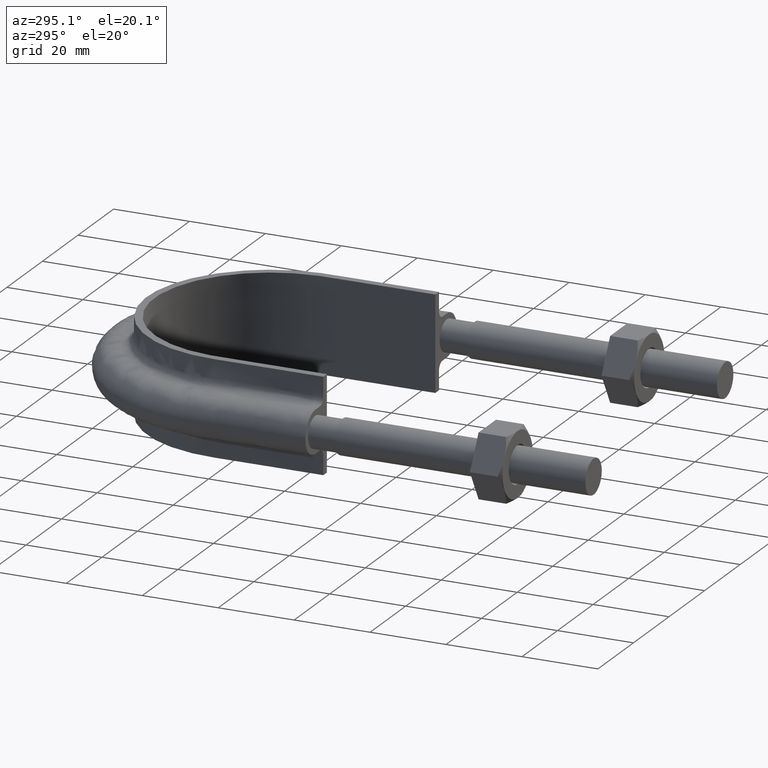
[diagram: clean part render]
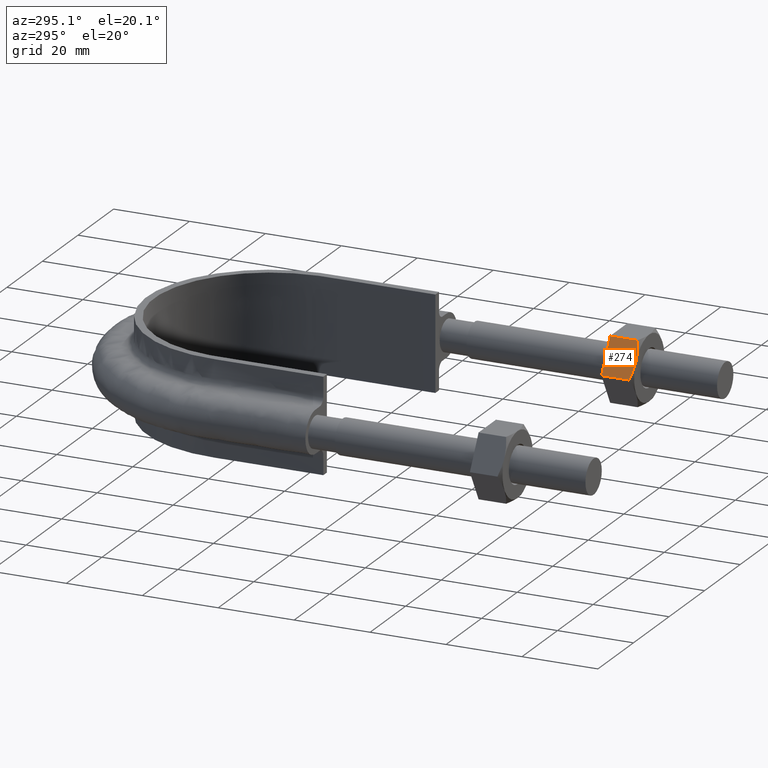
[diagram: same view with one face highlighted and labeled with its STEP entity id]
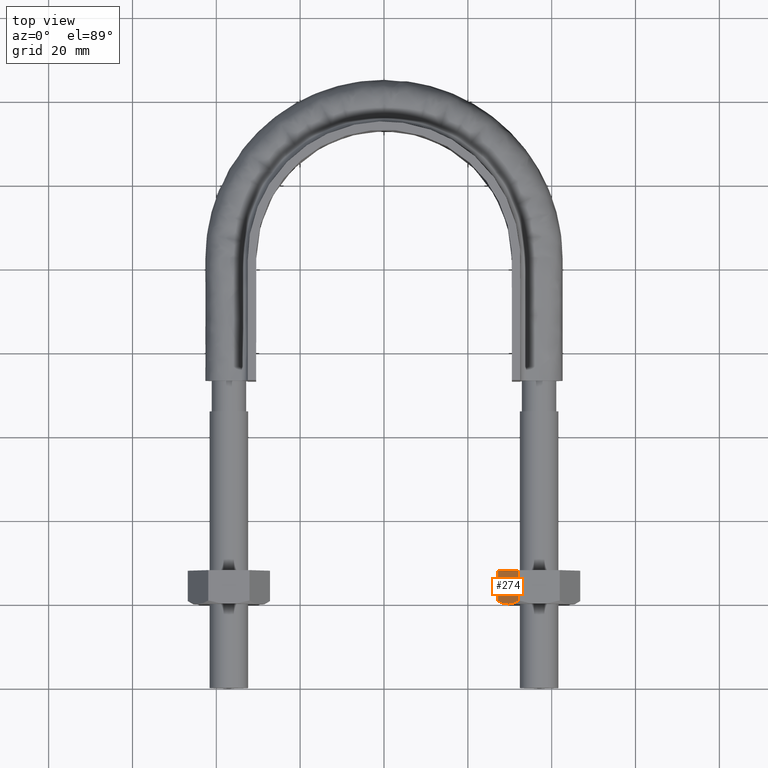
[diagram: same view with one face highlighted and labeled with its STEP entity id]
A machine part, auxiliary view. The second image highlights one B-rep face of the part: STEP entity #274.
A second angle (top view) of the same face is appended — the face is thin or edge-on in the first view.
In plain terms, the highlighted planar face has unit normal (0.866, -0, -0.5).
Its self-contained STEP definition (entity closure, byte-faithful):
#274 = ADVANCED_FACE( '', ( #421 ), #422, .F. );
#421 = FACE_OUTER_BOUND( '', #1418, .T. );
#422 = PLANE( '', #1419 );
#1418 = EDGE_LOOP( '', ( #1844, #1845, #1846, #1847, #1848 ) );
#1419 = AXIS2_PLACEMENT_3D( '', #1849, #1850, #1851 );
#1844 = ORIENTED_EDGE( '', *, *, #2111, .F. );
#1845 = ORIENTED_EDGE( '', *, *, #2112, .F. );
#1846 = ORIENTED_EDGE( '', *, *, #2113, .F. );
#1847 = ORIENTED_EDGE( '', *, *, #2114, .F. );
#1848 = ORIENTED_EDGE( '', *, *, #2115, .F. );
#1849 = CARTESIAN_POINT( '', ( 27.1850454237764, 27.9999999999964, -3.85653520836721E-012 ) );
#1850 = DIRECTION( '', ( 0.866025403784635, -2.42723201254790E-016, -0.499999999999660 ) );
#1851 = DIRECTION( '', ( 0.000000000000000, -1.00000000000000, 4.85446402509910E-016 ) );
#2111 = EDGE_CURVE( '', #2335, #2336, #2337, .T. );
#2112 = EDGE_CURVE( '', #2338, #2335, #2339, .T. );
#2113 = EDGE_CURVE( '', #2340, #2338, #2341, .F. );
#2114 = EDGE_CURVE( '', #2342, #2340, #2343, .T. );
#2115 = EDGE_CURVE( '', #2336, #2342, #2344, .T. );
#2335 = VERTEX_POINT( '', #2922 );
#2336 = VERTEX_POINT( '', #2923 );
#2337 = B_SPLINE_CURVE_WITH_KNOTS( '', 3, ( #2924, #2925, #2926, #2927, #2928, #2929 ), .UNSPECIFIED., .F., .F., ( 4, 2, 4 ), ( 8.67361737988404E-019, 0.00246745482903608, 0.00493490965807216 ), .UNSPECIFIED. );
#2338 = VERTEX_POINT( '', #2930 );
#2339 = B_SPLINE_CURVE_WITH_KNOTS( '', 3, ( #2931, #2932, #2933, #2934, #2935, #2936 ), .UNSPECIFIED., .F., .F., ( 4, 2, 4 ), ( 1.74337551706054E-017, 0.00246745482903608, 0.00493490965807213 ), .UNSPECIFIED. );
#2340 = VERTEX_POINT( '', #2937 );
#2341 = LINE( '', #2938, #2939 );
#2342 = VERTEX_POINT( '', #2940 );
#2343 = LINE( '', #2941, #2942 );
#2344 = LINE( '', #2943, #2944 );
#2922 = CARTESIAN_POINT( '', ( 29.6387840678306, 19.9999999999964, 4.24999999999709 ) );
#2923 = CARTESIAN_POINT( '', ( 27.2000343881808, 20.7505553499429, 0.0259616478974648 ) );
#2924 = CARTESIAN_POINT( '', ( 29.6387840678306, 19.9999999999964, 4.24999999999708 ) );
#2925 = CARTESIAN_POINT( '', ( 29.2227010927355, 19.9999999999964, 3.52932314696734 ) );
#2926 = CARTESIAN_POINT( '', ( 28.8121309439884, 20.0716504305254, 2.81819478926544 ) );
#2927 = CARTESIAN_POINT( '', ( 28.0000624800003, 20.3328582843670, 1.41165095041244 ) );
#2928 = CARTESIAN_POINT( '', ( 27.5984982144934, 20.5215585493620, 0.716121240049741 ) );
#2929 = CARTESIAN_POINT( '', ( 27.2000343881808, 20.7505553499429, 0.0259616478974747 ) );
#2930 = CARTESIAN_POINT( '', ( 32.0775337474804, 20.7505553499429, 8.47403835209670 ) );
#2931 = CARTESIAN_POINT( '', ( 32.0775337474804, 20.7505553499429, 8.47403835209669 ) );
#2932 = CARTESIAN_POINT( '', ( 31.6790699211679, 20.5215585493620, 7.78387875994443 ) );
#2933 = CARTESIAN_POINT( '', ( 31.2775056556610, 20.3328582843670, 7.08834904958171 ) );
#2934 = CARTESIAN_POINT( '', ( 30.4654371916729, 20.0716504305254, 5.68180521072872 ) );
#2935 = CARTESIAN_POINT( '', ( 30.0548670429257, 19.9999999999964, 4.97067685302682 ) );
#2936 = CARTESIAN_POINT( '', ( 29.6387840678306, 19.9999999999964, 4.24999999999708 ) );
#2937 = CARTESIAN_POINT( '', ( 32.0775337474804, 27.9999999999964, 8.47403835209672 ) );
#2938 = CARTESIAN_POINT( '', ( 32.0775337474804, 27.9999999999964, 8.47403835209672 ) );
#2939 = VECTOR( '', #3222, 1000.00000000000 );
#2940 = CARTESIAN_POINT( '', ( 27.2000343881808, 27.9999999999964, 0.0259616478974617 ) );
#2941 = CARTESIAN_POINT( '', ( 32.0887840678290, 27.9999999999964, 8.49352447854181 ) );
#2942 = VECTOR( '', #3223, 1000.00000000000 );
#2943 = CARTESIAN_POINT( '', ( 27.2000343881808, 27.9999999999964, 0.0259616478974619 ) );
#2944 = VECTOR( '', #3224, 1000.00000000000 );
#3222 = DIRECTION( '', ( 2.44921270764475E-016, 1.00000000000000, -6.12303176911192E-017 ) );
#3223 = DIRECTION( '', ( 0.499999999999660, -6.94336247798420E-017, 0.866025403784635 ) );
#3224 = DIRECTION( '', ( 2.44921270764475E-016, 1.00000000000000, -6.12303176911192E-017 ) );